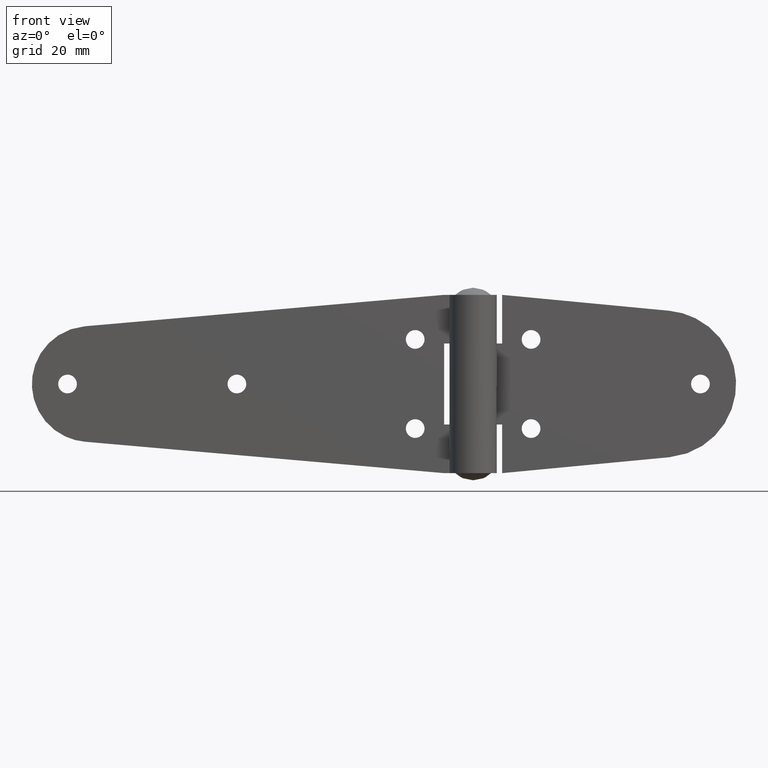
[diagram: clean part render]
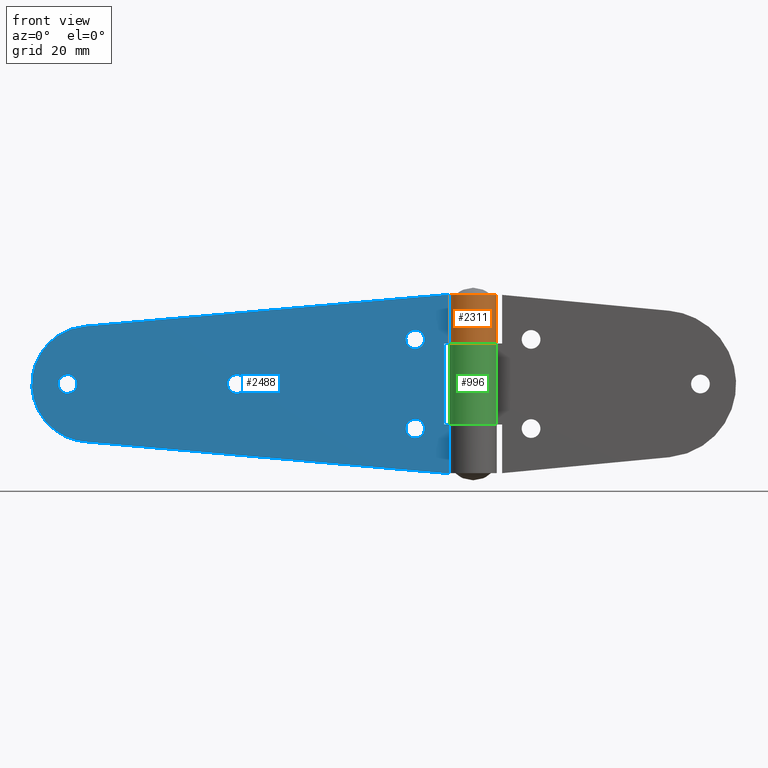
[diagram: same view with three faces highlighted in distinct colors, each labeled with its STEP entity id]
A machine part, front view with three faces highlighted in distinct colors.
Their STEP definitions:

[orange] entity #2311 — the highlighted face is a freeform B-spline surface patch.
#2051=CARTESIAN_POINT('',(0.0,5.299998000000000,29.099990999999900));
#2052=VERTEX_POINT('',#2051);
#2058=CARTESIAN_POINT('',(-4.403124833567455,2.949995000000100,29.099990999999950));
#2059=VERTEX_POINT('',#2058);
#2060=CARTESIAN_POINT('',(0.0,5.299998000000000,29.099990999999950));
#2061=CARTESIAN_POINT('',(4.137483857235158,5.299998000000000,29.099990999999946));
#2062=CARTESIAN_POINT('',(5.141563527366285,1.286197222070073,29.099990999999950));
#2063=CARTESIAN_POINT('',(6.145643197497408,-2.727603555859852,29.099990999999946));
#2064=CARTESIAN_POINT('',(2.495497064714111,-4.675732370442866,29.099990999999950));
#2065=CARTESIAN_POINT('',(-1.154649068069188,-6.623861185025880,29.099990999999946));
#2066=CARTESIAN_POINT('',(-3.930354997733134,-3.555599582601813,29.099990999999950));
#2067=CARTESIAN_POINT('',(-6.706060927397081,-0.487337980177742,29.099990999999946));
#2068=CARTESIAN_POINT('',(-4.403124833567455,2.949995000000097,29.099990999999950));
#2076=(BOUNDED_CURVE()B_SPLINE_CURVE(2,(#2060,#2061,#2062,#2063,#2064,#2065,#2066,#2067,#2068),.UNSPECIFIED.,.F.,.U.)B_SPLINE_CURVE_WITH_KNOTS((3,2,2,2,3),(0.0,0.250000000000000,0.500000000000000,0.750000000000000,1.0),.UNSPECIFIED.)CURVE()GEOMETRIC_REPRESENTATION_ITEM()RATIONAL_B_SPLINE_CURVE((1.0,0.788250852432843,1.0,0.788250852432843,1.0,0.788250852432843,1.0,0.788250852432843,1.0))REPRESENTATION_ITEM(''));
#2077=EDGE_CURVE('',#2052,#2059,#2076,.T.);
#2210=CARTESIAN_POINT('',(9.739208E-015,5.299998000000000,40.0));
#2211=VERTEX_POINT('',#2210);
#2246=CARTESIAN_POINT('',(-4.403124833567455,2.949995000000100,40.0));
#2247=VERTEX_POINT('',#2246);
#2253=CARTESIAN_POINT('',(0.0,5.299998000000000,40.0));
#2254=CARTESIAN_POINT('',(4.137483857235162,5.299998000000000,40.000000000000007));
#2255=CARTESIAN_POINT('',(5.141563527366286,1.286197222070069,40.0));
#2256=CARTESIAN_POINT('',(6.145643197497409,-2.727603555859857,40.000000000000007));
#2257=CARTESIAN_POINT('',(2.495497064714107,-4.675732370442868,40.0));
#2258=CARTESIAN_POINT('',(-1.154649068069197,-6.623861185025880,40.000000000000007));
#2259=CARTESIAN_POINT('',(-3.930354997733140,-3.555599582601806,40.0));
#2260=CARTESIAN_POINT('',(-6.706060927397078,-0.487337980177736,40.000000000000007));
#2261=CARTESIAN_POINT('',(-4.403124833567455,2.949995000000097,40.0));
#2269=(BOUNDED_CURVE()B_SPLINE_CURVE(2,(#2253,#2254,#2255,#2256,#2257,#2258,#2259,#2260,#2261),.UNSPECIFIED.,.F.,.U.)B_SPLINE_CURVE_WITH_KNOTS((3,2,2,2,3),(0.0,0.250000000000000,0.500000000000000,0.750000000000000,1.0),.UNSPECIFIED.)CURVE()GEOMETRIC_REPRESENTATION_ITEM()RATIONAL_B_SPLINE_CURVE((1.0,0.788250852432843,1.0,0.788250852432843,1.0,0.788250852432843,1.0,0.788250852432843,1.0))REPRESENTATION_ITEM(''));
#2270=EDGE_CURVE('',#2211,#2247,#2269,.T.);
#2275=CARTESIAN_POINT('',(-4.314810619057448,3.077724503862076,40.272500225000009));
#2276=CARTESIAN_POINT('',(-4.314810619057448,3.077724503862076,28.820678269374898));
#2277=CARTESIAN_POINT('',(-8.207227849486563,-2.379243193728303,40.272500225000023));
#2278=CARTESIAN_POINT('',(-8.207227849486563,-2.379243193728303,28.820678269374906));
#2279=CARTESIAN_POINT('',(-1.999700233538165,-4.908276456760702,40.272500225000009));
#2280=CARTESIAN_POINT('',(-1.999700233538165,-4.908276456760702,28.820678269374898));
#2281=CARTESIAN_POINT('',(4.207827382410232,-7.437309719793100,40.272500225000023));
#2282=CARTESIAN_POINT('',(4.207827382410232,-7.437309719793100,28.820678269374906));
#2283=CARTESIAN_POINT('',(5.237135840219978,-0.813871606021098,40.272500225000009));
#2284=CARTESIAN_POINT('',(5.237135840219978,-0.813871606021098,28.820678269374898));
#2285=CARTESIAN_POINT('',(6.266444298029724,5.809566507750905,40.272500225000023));
#2286=CARTESIAN_POINT('',(6.266444298029724,5.809566507750905,28.820678269374906));
#2287=CARTESIAN_POINT('',(-0.415833050439379,5.283659874950910,40.272500225000009));
#2288=CARTESIAN_POINT('',(-0.415833050439379,5.283659874950910,28.820678269374898));
#2296=(BOUNDED_SURFACE()B_SPLINE_SURFACE(1,2,((#2275,#2277,#2279,#2281,#2283,#2285,#2287),(#2276,#2278,#2280,#2282,#2284,#2286,#2288)),.UNSPECIFIED.,.F.,.F.,.U.)B_SPLINE_SURFACE_WITH_KNOTS((2,2),(3,2,2,3),(0.0,11.451821955625119),(0.0,10.263696796292651,20.527393592585302,30.791090388877940),.UNSPECIFIED.)GEOMETRIC_REPRESENTATION_ITEM()RATIONAL_B_SPLINE_SURFACE(((1.0,0.620235491268260,1.0,0.620235491268260,1.0,0.620235491268260,1.0),(1.0,0.620235491268260,1.0,0.620235491268260,1.0,0.620235491268260,1.0)))REPRESENTATION_ITEM('')SURFACE());
#2297=CARTESIAN_POINT('',(-4.403124833567455,2.949995000000100,40.0));
#2298=CARTESIAN_POINT('',(-4.403124833567455,2.949995000000100,29.099990999999950));
#2299=QUASI_UNIFORM_CURVE('',1,(#2297,#2298),.UNSPECIFIED.,.F.,.U.);
#2300=EDGE_CURVE('',#2247,#2059,#2299,.T.);
#2301=ORIENTED_EDGE('',*,*,#2300,.T.);
#2302=ORIENTED_EDGE('',*,*,#2077,.F.);
#2303=CARTESIAN_POINT('',(9.739208E-015,5.299998000000000,40.0));
#2304=CARTESIAN_POINT('',(0.0,5.299998000000000,29.099990999999900));
#2305=QUASI_UNIFORM_CURVE('',1,(#2303,#2304),.UNSPECIFIED.,.F.,.U.);
#2306=EDGE_CURVE('',#2211,#2052,#2305,.T.);
#2307=ORIENTED_EDGE('',*,*,#2306,.F.);
#2308=ORIENTED_EDGE('',*,*,#2270,.T.);
#2309=EDGE_LOOP('',(#2301,#2302,#2307,#2308));
#2310=FACE_OUTER_BOUND('',#2309,.T.);
#2311=ADVANCED_FACE('',(#2310),#2296,.T.);

[blue] entity #2488 — the highlighted face is a freeform B-spline surface patch.
#1124=CARTESIAN_POINT('',(-91.0,2.999995000000145,22.100000000000001));
#1125=VERTEX_POINT('',#1124);
#1126=CARTESIAN_POINT('',(-93.093526400732614,2.999995000000145,20.164764102387469));
#1127=VERTEX_POINT('',#1126);
#1128=CARTESIAN_POINT('',(-91.0,2.999995000000145,22.100000000000001));
#1129=CARTESIAN_POINT('',(-92.941220029954195,2.999995000000144,22.099999999999998));
#1130=CARTESIAN_POINT('',(-93.093526400732614,2.999995000000145,20.164764102387466));
#1138=(BOUNDED_CURVE()B_SPLINE_CURVE(2,(#1128,#1129,#1130),.UNSPECIFIED.,.F.,.U.)B_SPLINE_CURVE_WITH_KNOTS((3,3),(0.0,0.236331300410210),.UNSPECIFIED.)CURVE()GEOMETRIC_REPRESENTATION_ITEM()RATIONAL_B_SPLINE_CURVE((1.0,0.723120658865939,0.969723355707355))REPRESENTATION_ITEM(''));
#1139=EDGE_CURVE('',#1125,#1127,#1138,.T.);
#1180=CARTESIAN_POINT('',(-88.906473599267386,2.999995000000145,19.835235897612531));
#1181=VERTEX_POINT('',#1180);
#1187=CARTESIAN_POINT('',(-88.906473599267386,2.999995000000145,19.835235897612531));
#1188=CARTESIAN_POINT('',(-88.900000000000006,2.999995000000145,19.917490773918594));
#1189=CARTESIAN_POINT('',(-88.899999999999991,2.999995000000145,20.0));
#1190=CARTESIAN_POINT('',(-88.899999999999977,2.999995000000145,22.099999999999998));
#1191=CARTESIAN_POINT('',(-91.0,2.999995000000145,22.100000000000001));
#1199=(BOUNDED_CURVE()B_SPLINE_CURVE(2,(#1187,#1188,#1189,#1190,#1191),.UNSPECIFIED.,.F.,.U.)B_SPLINE_CURVE_WITH_KNOTS((3,2,3),(0.736331300410209,0.750000000000000,1.0),.UNSPECIFIED.)CURVE()GEOMETRIC_REPRESENTATION_ITEM()RATIONAL_B_SPLINE_CURVE((0.969723355707355,0.983986122320608,1.0,0.707106781186548,1.0))REPRESENTATION_ITEM(''));
#1200=EDGE_CURVE('',#1181,#1125,#1199,.T.);
#1223=CARTESIAN_POINT('',(-91.0,2.999995000000145,17.899999999999999));
#1224=VERTEX_POINT('',#1223);
#1225=CARTESIAN_POINT('',(-93.093526400732614,2.999995000000146,20.164764102387469));
#1226=CARTESIAN_POINT('',(-93.100000000000009,2.999995000000144,20.082509226081406));
#1227=CARTESIAN_POINT('',(-93.100000000000009,2.999995000000145,20.0));
#1228=CARTESIAN_POINT('',(-93.100000000000009,2.999995000000145,17.899999999999999));
#1229=CARTESIAN_POINT('',(-91.0,2.999995000000145,17.899999999999999));
#1237=(BOUNDED_CURVE()B_SPLINE_CURVE(2,(#1225,#1226,#1227,#1228,#1229),.UNSPECIFIED.,.F.,.U.)B_SPLINE_CURVE_WITH_KNOTS((3,2,3),(0.236331300410209,0.250000000000000,0.500000000000000),.UNSPECIFIED.)CURVE()GEOMETRIC_REPRESENTATION_ITEM()RATIONAL_B_SPLINE_CURVE((0.969723355707355,0.983986122320609,1.0,0.707106781186548,1.0))REPRESENTATION_ITEM(''));
#1238=EDGE_CURVE('',#1127,#1224,#1237,.T.);
#1240=CARTESIAN_POINT('',(-91.0,2.999995000000145,17.899999999999999));
#1241=CARTESIAN_POINT('',(-89.058779970045777,2.999995000000145,17.900000000000002));
#1242=CARTESIAN_POINT('',(-88.906473599267386,2.999995000000145,19.835235897612534));
#1250=(BOUNDED_CURVE()B_SPLINE_CURVE(2,(#1240,#1241,#1242),.UNSPECIFIED.,.F.,.U.)B_SPLINE_CURVE_WITH_KNOTS((3,3),(0.500000000000000,0.736331300410209),.UNSPECIFIED.)CURVE()GEOMETRIC_REPRESENTATION_ITEM()RATIONAL_B_SPLINE_CURVE((1.0,0.723120658865940,0.969723355707353))REPRESENTATION_ITEM(''));
#1251=EDGE_CURVE('',#1224,#1181,#1250,.T.);
#1306=CARTESIAN_POINT('',(-53.0,2.999995000000145,22.100000000000001));
#1307=VERTEX_POINT('',#1306);
#1308=CARTESIAN_POINT('',(-55.093526400732607,2.999995000000145,20.164764102387469));
#1309=VERTEX_POINT('',#1308);
#1310=CARTESIAN_POINT('',(-53.0,2.999995000000145,22.100000000000001));
#1311=CARTESIAN_POINT('',(-54.941220029954174,2.999995000000145,22.100000000000012));
#1312=CARTESIAN_POINT('',(-55.093526400732614,2.999995000000146,20.164764102387473));
#1320=(BOUNDED_CURVE()B_SPLINE_CURVE(2,(#1310,#1311,#1312),.UNSPECIFIED.,.F.,.U.)B_SPLINE_CURVE_WITH_KNOTS((3,3),(0.0,0.236331300410209),.UNSPECIFIED.)CURVE()GEOMETRIC_REPRESENTATION_ITEM()RATIONAL_B_SPLINE_CURVE((1.0,0.723120658865939,0.969723355707354))REPRESENTATION_ITEM(''));
#1321=EDGE_CURVE('',#1307,#1309,#1320,.T.);
#1362=CARTESIAN_POINT('',(-50.906473599267393,2.999995000000145,19.835235897612531));
#1363=VERTEX_POINT('',#1362);
#1369=CARTESIAN_POINT('',(-50.906473599267386,2.999995000000145,19.835235897612534));
#1370=CARTESIAN_POINT('',(-50.900000000000006,2.999995000000145,19.917490773918587));
#1371=CARTESIAN_POINT('',(-50.899999999999999,2.999995000000145,20.0));
#1372=CARTESIAN_POINT('',(-50.899999999999999,2.999995000000145,22.099999999999998));
#1373=CARTESIAN_POINT('',(-53.0,2.999995000000145,22.100000000000001));
#1381=(BOUNDED_CURVE()B_SPLINE_CURVE(2,(#1369,#1370,#1371,#1372,#1373),.UNSPECIFIED.,.F.,.U.)B_SPLINE_CURVE_WITH_KNOTS((3,2,3),(0.736331300410210,0.750000000000000,1.0),.UNSPECIFIED.)CURVE()GEOMETRIC_REPRESENTATION_ITEM()RATIONAL_B_SPLINE_CURVE((0.969723355707355,0.983986122320609,1.0,0.707106781186548,1.0))REPRESENTATION_ITEM(''));
#1382=EDGE_CURVE('',#1363,#1307,#1381,.T.);
#1405=CARTESIAN_POINT('',(-53.0,2.999995000000145,17.899999999999999));
#1406=VERTEX_POINT('',#1405);
#1407=CARTESIAN_POINT('',(-55.093526400732614,2.999995000000145,20.164764102387476));
#1408=CARTESIAN_POINT('',(-55.100000000000001,2.999995000000145,20.082509226081406));
#1409=CARTESIAN_POINT('',(-55.099999999999987,2.999995000000145,20.0));
#1410=CARTESIAN_POINT('',(-55.100000000000001,2.999995000000145,17.899999999999999));
#1411=CARTESIAN_POINT('',(-53.0,2.999995000000145,17.899999999999999));
#1419=(BOUNDED_CURVE()B_SPLINE_CURVE(2,(#1407,#1408,#1409,#1410,#1411),.UNSPECIFIED.,.F.,.U.)B_SPLINE_CURVE_WITH_KNOTS((3,2,3),(0.236331300410209,0.250000000000000,0.500000000000000),.UNSPECIFIED.)CURVE()GEOMETRIC_REPRESENTATION_ITEM()RATIONAL_B_SPLINE_CURVE((0.969723355707354,0.983986122320608,1.0,0.707106781186548,1.0))REPRESENTATION_ITEM(''));
#1420=EDGE_CURVE('',#1309,#1406,#1419,.T.);
#1422=CARTESIAN_POINT('',(-53.0,2.999995000000145,17.899999999999999));
#1423=CARTESIAN_POINT('',(-51.058779970045819,2.999995000000145,17.900000000000002));
#1424=CARTESIAN_POINT('',(-50.906473599267386,2.999995000000145,19.835235897612534));
#1432=(BOUNDED_CURVE()B_SPLINE_CURVE(2,(#1422,#1423,#1424),.UNSPECIFIED.,.F.,.U.)B_SPLINE_CURVE_WITH_KNOTS((3,3),(0.500000000000000,0.736331300410209),.UNSPECIFIED.)CURVE()GEOMETRIC_REPRESENTATION_ITEM()RATIONAL_B_SPLINE_CURVE((1.0,0.723120658865940,0.969723355707353))REPRESENTATION_ITEM(''));
#1433=EDGE_CURVE('',#1406,#1363,#1432,.T.);
#1488=CARTESIAN_POINT('',(-13.000000000000201,2.999995000000145,32.099999999999987));
#1489=VERTEX_POINT('',#1488);
#1490=CARTESIAN_POINT('',(-15.093526400732809,2.999995000000145,30.164764102387469));
#1491=VERTEX_POINT('',#1490);
#1492=CARTESIAN_POINT('',(-13.000000000000201,2.999995000000145,32.099999999999987));
#1493=CARTESIAN_POINT('',(-14.941220029954389,2.999995000000145,32.099999999999994));
#1494=CARTESIAN_POINT('',(-15.093526400732815,2.999995000000146,30.164764102387473));
#1502=(BOUNDED_CURVE()B_SPLINE_CURVE(2,(#1492,#1493,#1494),.UNSPECIFIED.,.F.,.U.)B_SPLINE_CURVE_WITH_KNOTS((3,3),(0.0,0.236331300410209),.UNSPECIFIED.)CURVE()GEOMETRIC_REPRESENTATION_ITEM()RATIONAL_B_SPLINE_CURVE((1.0,0.723120658865939,0.969723355707354))REPRESENTATION_ITEM(''));
#1503=EDGE_CURVE('',#1489,#1491,#1502,.T.);
#1544=CARTESIAN_POINT('',(-10.906473599267590,2.999995000000145,29.835235897612531));
#1545=VERTEX_POINT('',#1544);
#1551=CARTESIAN_POINT('',(-10.906473599267590,2.999995000000145,29.835235897612531));
#1552=CARTESIAN_POINT('',(-10.900000000000201,2.999995000000145,29.917490773918594));
#1553=CARTESIAN_POINT('',(-10.900000000000199,2.999995000000145,30.0));
#1554=CARTESIAN_POINT('',(-10.900000000000199,2.999995000000145,32.099999999999987));
#1555=CARTESIAN_POINT('',(-13.000000000000201,2.999995000000145,32.099999999999987));
#1563=(BOUNDED_CURVE()B_SPLINE_CURVE(2,(#1551,#1552,#1553,#1554,#1555),.UNSPECIFIED.,.F.,.U.)B_SPLINE_CURVE_WITH_KNOTS((3,2,3),(0.736331300410209,0.750000000000000,1.0),.UNSPECIFIED.)CURVE()GEOMETRIC_REPRESENTATION_ITEM()RATIONAL_B_SPLINE_CURVE((0.969723355707355,0.983986122320608,1.0,0.707106781186548,1.0))REPRESENTATION_ITEM(''));
#1564=EDGE_CURVE('',#1545,#1489,#1563,.T.);
#1587=CARTESIAN_POINT('',(-13.000000000000201,2.999995000000145,27.899999999999999));
#1588=VERTEX_POINT('',#1587);
#1589=CARTESIAN_POINT('',(-15.093526400732818,2.999995000000146,30.164764102387469));
#1590=CARTESIAN_POINT('',(-15.100000000000202,2.999995000000145,30.082509226081410));
#1591=CARTESIAN_POINT('',(-15.100000000000200,2.999995000000145,30.0));
#1592=CARTESIAN_POINT('',(-15.100000000000200,2.999995000000145,27.900000000000002));
#1593=CARTESIAN_POINT('',(-13.000000000000201,2.999995000000145,27.899999999999999));
#1601=(BOUNDED_CURVE()B_SPLINE_CURVE(2,(#1589,#1590,#1591,#1592,#1593),.UNSPECIFIED.,.F.,.U.)B_SPLINE_CURVE_WITH_KNOTS((3,2,3),(0.236331300410209,0.250000000000000,0.500000000000000),.UNSPECIFIED.)CURVE()GEOMETRIC_REPRESENTATION_ITEM()RATIONAL_B_SPLINE_CURVE((0.969723355707354,0.983986122320608,1.0,0.707106781186548,1.0))REPRESENTATION_ITEM(''));
#1602=EDGE_CURVE('',#1491,#1588,#1601,.T.);
#1604=CARTESIAN_POINT('',(-13.000000000000201,2.999995000000145,27.899999999999999));
#1605=CARTESIAN_POINT('',(-11.058779970046020,2.999995000000145,27.900000000000002));
#1606=CARTESIAN_POINT('',(-10.906473599267589,2.999995000000145,29.835235897612527));
#1614=(BOUNDED_CURVE()B_SPLINE_CURVE(2,(#1604,#1605,#1606),.UNSPECIFIED.,.F.,.U.)B_SPLINE_CURVE_WITH_KNOTS((3,3),(0.500000000000000,0.736331300410209),.UNSPECIFIED.)CURVE()GEOMETRIC_REPRESENTATION_ITEM()RATIONAL_B_SPLINE_CURVE((1.0,0.723120658865940,0.969723355707353))REPRESENTATION_ITEM(''));
#1615=EDGE_CURVE('',#1588,#1545,#1614,.T.);
#1670=CARTESIAN_POINT('',(-13.000000000000201,2.999995000000145,12.100000000000000));
#1671=VERTEX_POINT('',#1670);
#1672=CARTESIAN_POINT('',(-15.093526400732809,2.999995000000145,10.164764102387471));
#1673=VERTEX_POINT('',#1672);
#1674=CARTESIAN_POINT('',(-13.000000000000201,2.999995000000145,12.100000000000000));
#1675=CARTESIAN_POINT('',(-14.941220029954389,2.999995000000145,12.099999999999998));
#1676=CARTESIAN_POINT('',(-15.093526400732815,2.999995000000145,10.164764102387473));
#1684=(BOUNDED_CURVE()B_SPLINE_CURVE(2,(#1674,#1675,#1676),.UNSPECIFIED.,.F.,.U.)B_SPLINE_CURVE_WITH_KNOTS((3,3),(0.0,0.236331300410209),.UNSPECIFIED.)CURVE()GEOMETRIC_REPRESENTATION_ITEM()RATIONAL_B_SPLINE_CURVE((1.0,0.723120658865939,0.969723355707354))REPRESENTATION_ITEM(''));
#1685=EDGE_CURVE('',#1671,#1673,#1684,.T.);
#1726=CARTESIAN_POINT('',(-10.906473599267590,2.999995000000145,9.835235897612527));
#1727=VERTEX_POINT('',#1726);
#1733=CARTESIAN_POINT('',(-10.906473599267585,2.999995000000145,9.835235897612527));
#1734=CARTESIAN_POINT('',(-10.900000000000205,2.999995000000145,9.917490773918591));
#1735=CARTESIAN_POINT('',(-10.900000000000199,2.999995000000145,10.0));
#1736=CARTESIAN_POINT('',(-10.900000000000199,2.999995000000145,12.099999999999998));
#1737=CARTESIAN_POINT('',(-13.000000000000201,2.999995000000145,12.100000000000000));
#1745=(BOUNDED_CURVE()B_SPLINE_CURVE(2,(#1733,#1734,#1735,#1736,#1737),.UNSPECIFIED.,.F.,.U.)B_SPLINE_CURVE_WITH_KNOTS((3,2,3),(0.736331300410209,0.750000000000000,1.0),.UNSPECIFIED.)CURVE()GEOMETRIC_REPRESENTATION_ITEM()RATIONAL_B_SPLINE_CURVE((0.969723355707354,0.983986122320608,1.0,0.707106781186548,1.0))REPRESENTATION_ITEM(''));
#1746=EDGE_CURVE('',#1727,#1671,#1745,.T.);
#1769=CARTESIAN_POINT('',(-13.000000000000201,2.999995000000145,7.900000000000000));
#1770=VERTEX_POINT('',#1769);
#1771=CARTESIAN_POINT('',(-15.093526400732815,2.999995000000145,10.164764102387473));
#1772=CARTESIAN_POINT('',(-15.100000000000200,2.999995000000145,10.082509226081408));
#1773=CARTESIAN_POINT('',(-15.100000000000200,2.999995000000145,10.0));
#1774=CARTESIAN_POINT('',(-15.100000000000200,2.999995000000145,7.900000000000000));
#1775=CARTESIAN_POINT('',(-13.000000000000201,2.999995000000145,7.900000000000000));
#1783=(BOUNDED_CURVE()B_SPLINE_CURVE(2,(#1771,#1772,#1773,#1774,#1775),.UNSPECIFIED.,.F.,.U.)B_SPLINE_CURVE_WITH_KNOTS((3,2,3),(0.236331300410209,0.250000000000000,0.500000000000000),.UNSPECIFIED.)CURVE()GEOMETRIC_REPRESENTATION_ITEM()RATIONAL_B_SPLINE_CURVE((0.969723355707354,0.983986122320608,1.0,0.707106781186548,1.0))REPRESENTATION_ITEM(''));
#1784=EDGE_CURVE('',#1673,#1770,#1783,.T.);
#1786=CARTESIAN_POINT('',(-13.000000000000201,2.999995000000145,7.900000000000000));
#1787=CARTESIAN_POINT('',(-11.058779970046020,2.999995000000145,7.900000000000000));
#1788=CARTESIAN_POINT('',(-10.906473599267589,2.999995000000145,9.835235897612527));
#1796=(BOUNDED_CURVE()B_SPLINE_CURVE(2,(#1786,#1787,#1788),.UNSPECIFIED.,.F.,.U.)B_SPLINE_CURVE_WITH_KNOTS((3,3),(0.500000000000000,0.736331300410209),.UNSPECIFIED.)CURVE()GEOMETRIC_REPRESENTATION_ITEM()RATIONAL_B_SPLINE_CURVE((1.0,0.723120658865940,0.969723355707353))REPRESENTATION_ITEM(''));
#1797=EDGE_CURVE('',#1770,#1727,#1796,.T.);
#1848=CARTESIAN_POINT('',(-6.500014999999999,2.999995000000145,0.0));
#1849=VERTEX_POINT('',#1848);
#1855=CARTESIAN_POINT('',(-87.132227673884998,2.999995000000145,7.049399222642639));
#1856=VERTEX_POINT('',#1855);
#1857=CARTESIAN_POINT('',(-87.132227673884998,2.999995000000145,7.049399222642639));
#1858=CARTESIAN_POINT('',(-6.500014999999999,2.999995000000145,0.0));
#1859=QUASI_UNIFORM_CURVE('',1,(#1857,#1858),.UNSPECIFIED.,.F.,.U.);
#1860=EDGE_CURVE('',#1856,#1849,#1859,.T.);
#1884=CARTESIAN_POINT('',(-87.132232999999999,2.999995000000145,32.950606999999998));
#1885=VERTEX_POINT('',#1884);
#1891=CARTESIAN_POINT('',(-6.500000000000000,2.999995000000145,40.0));
#1892=VERTEX_POINT('',#1891);
#1893=CARTESIAN_POINT('',(-6.500000000000000,2.999995000000145,40.0));
#1894=CARTESIAN_POINT('',(-87.132232999999999,2.999995000000145,32.950606999999998));
#1895=QUASI_UNIFORM_CURVE('',1,(#1893,#1894),.UNSPECIFIED.,.F.,.U.);
#1896=EDGE_CURVE('',#1892,#1885,#1895,.T.);
#1940=CARTESIAN_POINT('',(-87.132232999999999,2.999995000000145,32.950606999999998));
#1941=CARTESIAN_POINT('',(-99.000002739852235,2.999995000000145,31.913042968783593));
#1942=CARTESIAN_POINT('',(-99.000000290150567,2.999995000000145,20.000000936818999));
#1943=CARTESIAN_POINT('',(-98.999997840448899,2.999995000000145,8.086958904854408));
#1944=CARTESIAN_POINT('',(-87.132227673884998,2.999995000000145,7.049399222642639));
#1952=(BOUNDED_CURVE()B_SPLINE_CURVE(2,(#1940,#1941,#1942,#1943,#1944),.UNSPECIFIED.,.F.,.U.)B_SPLINE_CURVE_WITH_KNOTS((3,2,3),(0.0,0.500000000000000,1.0),.UNSPECIFIED.)CURVE()GEOMETRIC_REPRESENTATION_ITEM()RATIONAL_B_SPLINE_CURVE((1.0,0.737256610341331,1.0,0.737256610341331,1.0))REPRESENTATION_ITEM(''));
#1953=EDGE_CURVE('',#1885,#1856,#1952,.T.);
#1966=CARTESIAN_POINT('',(0.0,2.999995000000100,10.899993999999960));
#1967=VERTEX_POINT('',#1966);
#2022=CARTESIAN_POINT('',(-6.500000000000000,2.999995000000145,10.899994000000000));
#2023=VERTEX_POINT('',#2022);
#2029=CARTESIAN_POINT('',(0.0,2.999995000000100,10.899993999999960));
#2030=CARTESIAN_POINT('',(-6.500000000000000,2.999995000000145,10.899994000000000));
#2031=QUASI_UNIFORM_CURVE('',1,(#2029,#2030),.UNSPECIFIED.,.F.,.U.);
#2032=EDGE_CURVE('',#1967,#2023,#2031,.T.);
#2042=CARTESIAN_POINT('',(-6.500000000000000,2.999995000000145,29.099990999999900));
#2043=VERTEX_POINT('',#2042);
#2086=CARTESIAN_POINT('',(0.0,2.999995000000100,29.099990999999950));
#2087=VERTEX_POINT('',#2086);
#2107=CARTESIAN_POINT('',(-6.500000000000000,2.999995000000145,29.099990999999900));
#2108=CARTESIAN_POINT('',(0.0,2.999995000000100,29.099990999999950));
#2109=QUASI_UNIFORM_CURVE('',1,(#2107,#2108),.UNSPECIFIED.,.F.,.U.);
#2110=EDGE_CURVE('',#2043,#2087,#2109,.T.);
#2127=CARTESIAN_POINT('',(-6.500000000000000,2.999995000000145,10.899994000000000));
#2128=CARTESIAN_POINT('',(-6.500000000000000,2.999995000000145,29.099990999999900));
#2129=QUASI_UNIFORM_CURVE('',1,(#2127,#2128),.UNSPECIFIED.,.F.,.U.);
#2130=EDGE_CURVE('',#2023,#2043,#2129,.T.);
#2176=CARTESIAN_POINT('',(0.0,2.999995000000100,0.0));
#2177=VERTEX_POINT('',#2176);
#2197=CARTESIAN_POINT('',(-6.500014999999999,2.999995000000145,0.0));
#2198=CARTESIAN_POINT('',(0.0,2.999995000000100,0.0));
#2199=QUASI_UNIFORM_CURVE('',1,(#2197,#2198),.UNSPECIFIED.,.F.,.U.);
#2200=EDGE_CURVE('',#1849,#2177,#2199,.T.);
#2218=CARTESIAN_POINT('',(0.0,2.999995000000100,40.0));
#2219=VERTEX_POINT('',#2218);
#2220=CARTESIAN_POINT('',(-6.500000000000000,2.999995000000145,40.0));
#2221=CARTESIAN_POINT('',(0.0,2.999995000000100,40.0));
#2222=QUASI_UNIFORM_CURVE('',1,(#2220,#2221),.UNSPECIFIED.,.F.,.U.);
#2223=EDGE_CURVE('',#1892,#2219,#2222,.T.);
#2356=CARTESIAN_POINT('',(0.0,2.999995000000100,10.899993999999960));
#2357=CARTESIAN_POINT('',(0.0,2.999995000000100,0.0));
#2358=QUASI_UNIFORM_CURVE('',1,(#2356,#2357),.UNSPECIFIED.,.F.,.U.);
#2359=EDGE_CURVE('',#1967,#2177,#2358,.T.);
#2436=CARTESIAN_POINT('',(0.0,2.999995000000100,40.0));
#2437=CARTESIAN_POINT('',(0.0,2.999995000000100,29.099990999999950));
#2438=QUASI_UNIFORM_CURVE('',1,(#2436,#2437),.UNSPECIFIED.,.F.,.U.);
#2439=EDGE_CURVE('',#2219,#2087,#2438,.T.);
#2447=CARTESIAN_POINT('',(-103.945050112761900,2.999995000000100,-1.997999922472239));
#2448=CARTESIAN_POINT('',(-103.945050112761900,2.999995000000100,41.998000995355838));
#2449=CARTESIAN_POINT('',(4.945052477998713,2.999995000000100,-1.997999922472239));
#2450=CARTESIAN_POINT('',(4.945052477998713,2.999995000000100,41.998000995355838));
#2451=B_SPLINE_SURFACE_WITH_KNOTS('',1,1,((#2447,#2449),(#2448,#2450)),.UNSPECIFIED.,.F.,.F.,.U.,(2,2),(2,2),(0.0,43.996000917828077),(0.0,108.890102590760610),.UNSPECIFIED.);
#2452=ORIENTED_EDGE('',*,*,#2223,.F.);
#2453=ORIENTED_EDGE('',*,*,#1896,.T.);
#2454=ORIENTED_EDGE('',*,*,#1953,.T.);
#2455=ORIENTED_EDGE('',*,*,#1860,.T.);
#2456=ORIENTED_EDGE('',*,*,#2200,.T.);
#2457=ORIENTED_EDGE('',*,*,#2359,.F.);
#2458=ORIENTED_EDGE('',*,*,#2032,.T.);
#2459=ORIENTED_EDGE('',*,*,#2130,.T.);
#2460=ORIENTED_EDGE('',*,*,#2110,.T.);
#2461=ORIENTED_EDGE('',*,*,#2439,.F.);
#2462=EDGE_LOOP('',(#2452,#2453,#2454,#2455,#2456,#2457,#2458,#2459,#2460,#2461));
#2463=FACE_OUTER_BOUND('',#2462,.T.);
#2464=ORIENTED_EDGE('',*,*,#1797,.F.);
#2465=ORIENTED_EDGE('',*,*,#1784,.F.);
#2466=ORIENTED_EDGE('',*,*,#1685,.F.);
#2467=ORIENTED_EDGE('',*,*,#1746,.F.);
#2468=EDGE_LOOP('',(#2464,#2465,#2466,#2467));
#2469=FACE_BOUND('',#2468,.T.);
#2470=ORIENTED_EDGE('',*,*,#1615,.F.);
#2471=ORIENTED_EDGE('',*,*,#1602,.F.);
#2472=ORIENTED_EDGE('',*,*,#1503,.F.);
#2473=ORIENTED_EDGE('',*,*,#1564,.F.);
#2474=EDGE_LOOP('',(#2470,#2471,#2472,#2473));
#2475=FACE_BOUND('',#2474,.T.);
#2476=ORIENTED_EDGE('',*,*,#1433,.F.);
#2477=ORIENTED_EDGE('',*,*,#1420,.F.);
#2478=ORIENTED_EDGE('',*,*,#1321,.F.);
#2479=ORIENTED_EDGE('',*,*,#1382,.F.);
#2480=EDGE_LOOP('',(#2476,#2477,#2478,#2479));
#2481=FACE_BOUND('',#2480,.T.);
#2482=ORIENTED_EDGE('',*,*,#1251,.F.);
#2483=ORIENTED_EDGE('',*,*,#1238,.F.);
#2484=ORIENTED_EDGE('',*,*,#1139,.F.);
#2485=ORIENTED_EDGE('',*,*,#1200,.F.);
#2486=EDGE_LOOP('',(#2482,#2483,#2484,#2485));
#2487=FACE_BOUND('',#2486,.T.);
#2488=ADVANCED_FACE('',(#2463,#2469,#2475,#2481,#2487),#2451,.F.);

[green] entity #996 — the highlighted face is a freeform B-spline surface patch.
#720=CARTESIAN_POINT('',(4.403124833567455,2.949995000000100,10.900009000000100));
#721=VERTEX_POINT('',#720);
#722=CARTESIAN_POINT('',(7.105427E-015,5.299998000000000,10.900009000000100));
#723=VERTEX_POINT('',#722);
#724=CARTESIAN_POINT('',(4.403124833567453,2.949995000000100,10.900009000000100));
#725=CARTESIAN_POINT('',(6.706060927397083,-0.487337980177738,10.900009000000100));
#726=CARTESIAN_POINT('',(3.930354997733136,-3.555599582601810,10.900009000000100));
#727=CARTESIAN_POINT('',(1.154649068069190,-6.623861185025882,10.900009000000100));
#728=CARTESIAN_POINT('',(-2.495497064714112,-4.675732370442864,10.900009000000100));
#729=CARTESIAN_POINT('',(-6.145643197497414,-2.727603555859846,10.900009000000100));
#730=CARTESIAN_POINT('',(-5.141563527366283,1.286197222070079,10.900009000000100));
#731=CARTESIAN_POINT('',(-4.137483857235153,5.299998000000001,10.900009000000100));
#732=CARTESIAN_POINT('',(0.0,5.299998000000000,10.900009000000100));
#740=(BOUNDED_CURVE()B_SPLINE_CURVE(2,(#724,#725,#726,#727,#728,#729,#730,#731,#732),.UNSPECIFIED.,.F.,.U.)B_SPLINE_CURVE_WITH_KNOTS((3,2,2,2,3),(0.0,0.250000000000000,0.500000000000000,0.750000000000000,1.0),.UNSPECIFIED.)CURVE()GEOMETRIC_REPRESENTATION_ITEM()RATIONAL_B_SPLINE_CURVE((1.0,0.788250852432843,1.0,0.788250852432843,1.0,0.788250852432843,1.0,0.788250852432843,1.0))REPRESENTATION_ITEM(''));
#741=EDGE_CURVE('',#721,#723,#740,.T.);
#818=CARTESIAN_POINT('',(7.105427E-015,5.299998000000000,29.099990999999900));
#819=VERTEX_POINT('',#818);
#820=CARTESIAN_POINT('',(4.403124833567455,2.949995000000100,29.099990999999950));
#821=VERTEX_POINT('',#820);
#822=CARTESIAN_POINT('',(0.0,5.299998000000000,29.099990999999950));
#823=CARTESIAN_POINT('',(-4.137483857235151,5.299998000000000,29.099990999999957));
#824=CARTESIAN_POINT('',(-5.141563527366283,1.286197222070082,29.099990999999950));
#825=CARTESIAN_POINT('',(-6.145643197497418,-2.727603555859845,29.099990999999957));
#826=CARTESIAN_POINT('',(-2.495497064714115,-4.675732370442863,29.099990999999950));
#827=CARTESIAN_POINT('',(1.154649068069185,-6.623861185025883,29.099990999999957));
#828=CARTESIAN_POINT('',(3.930354997733134,-3.555599582601813,29.099990999999950));
#829=CARTESIAN_POINT('',(6.706060927397082,-0.487337980177742,29.099990999999957));
#830=CARTESIAN_POINT('',(4.403124833567455,2.949995000000097,29.099990999999950));
#838=(BOUNDED_CURVE()B_SPLINE_CURVE(2,(#822,#823,#824,#825,#826,#827,#828,#829,#830),.UNSPECIFIED.,.F.,.U.)B_SPLINE_CURVE_WITH_KNOTS((3,2,2,2,3),(0.0,0.250000000000000,0.500000000000000,0.750000000000000,1.0),.UNSPECIFIED.)CURVE()GEOMETRIC_REPRESENTATION_ITEM()RATIONAL_B_SPLINE_CURVE((1.0,0.788250852432844,1.0,0.788250852432844,1.0,0.788250852432844,1.0,0.788250852432844,1.0))REPRESENTATION_ITEM(''));
#839=EDGE_CURVE('',#819,#821,#838,.T.);
#923=CARTESIAN_POINT('',(4.403124833567455,2.949995000000100,29.099990999999950));
#924=CARTESIAN_POINT('',(4.403124833567455,2.949995000000100,10.900009000000100));
#925=QUASI_UNIFORM_CURVE('',1,(#923,#924),.UNSPECIFIED.,.F.,.U.);
#926=EDGE_CURVE('',#821,#721,#925,.T.);
#964=CARTESIAN_POINT('',(0.046250620688313,5.299796192316260,29.554990549999950));
#965=CARTESIAN_POINT('',(0.046250620688313,5.299796192316260,10.433634461250101));
#966=CARTESIAN_POINT('',(-6.537519241832854,5.357251881471268,29.554990549999950));
#967=CARTESIAN_POINT('',(-6.537519241832854,5.357251881471268,10.433634461250104));
#968=CARTESIAN_POINT('',(-5.187363778805290,-1.086846735442900,29.554990549999950));
#969=CARTESIAN_POINT('',(-5.187363778805290,-1.086846735442900,10.433634461250101));
#970=CARTESIAN_POINT('',(-3.837208315777727,-7.530945352357067,29.554990549999950));
#971=CARTESIAN_POINT('',(-3.837208315777727,-7.530945352357067,10.433634461250104));
#972=CARTESIAN_POINT('',(2.169778448203654,-4.835497935654086,29.554990549999950));
#973=CARTESIAN_POINT('',(2.169778448203654,-4.835497935654086,10.433634461250101));
#974=CARTESIAN_POINT('',(8.176765212185034,-2.140050518951106,29.554990549999950));
#975=CARTESIAN_POINT('',(8.176765212185034,-2.140050518951106,10.433634461250104));
#976=CARTESIAN_POINT('',(4.260439753557535,3.152559580136526,29.554990549999950));
#977=CARTESIAN_POINT('',(4.260439753557535,3.152559580136526,10.433634461250101));
#985=(BOUNDED_SURFACE()B_SPLINE_SURFACE(1,2,((#964,#966,#968,#970,#972,#974,#976),(#965,#967,#969,#971,#973,#975,#977)),.UNSPECIFIED.,.F.,.F.,.U.)B_SPLINE_SURFACE_WITH_KNOTS((2,2),(3,2,2,3),(0.0,19.121356088749849),(0.0,10.149752858970020,20.299505717940040,30.449258576910069),.UNSPECIFIED.)GEOMETRIC_REPRESENTATION_ITEM()RATIONAL_B_SPLINE_SURFACE(((1.0,0.627057105746662,1.0,0.627057105746662,1.0,0.627057105746662,1.0),(1.0,0.627057105746662,1.0,0.627057105746662,1.0,0.627057105746662,1.0)))REPRESENTATION_ITEM('')SURFACE());
#986=ORIENTED_EDGE('',*,*,#741,.F.);
#987=ORIENTED_EDGE('',*,*,#926,.F.);
#988=ORIENTED_EDGE('',*,*,#839,.F.);
#989=CARTESIAN_POINT('',(7.105427E-015,5.299998000000000,29.099990999999900));
#990=CARTESIAN_POINT('',(7.105427E-015,5.299998000000000,10.900009000000100));
#991=QUASI_UNIFORM_CURVE('',1,(#989,#990),.UNSPECIFIED.,.F.,.U.);
#992=EDGE_CURVE('',#819,#723,#991,.T.);
#993=ORIENTED_EDGE('',*,*,#992,.T.);
#994=EDGE_LOOP('',(#986,#987,#988,#993));
#995=FACE_OUTER_BOUND('',#994,.T.);
#996=ADVANCED_FACE('',(#995),#985,.T.);